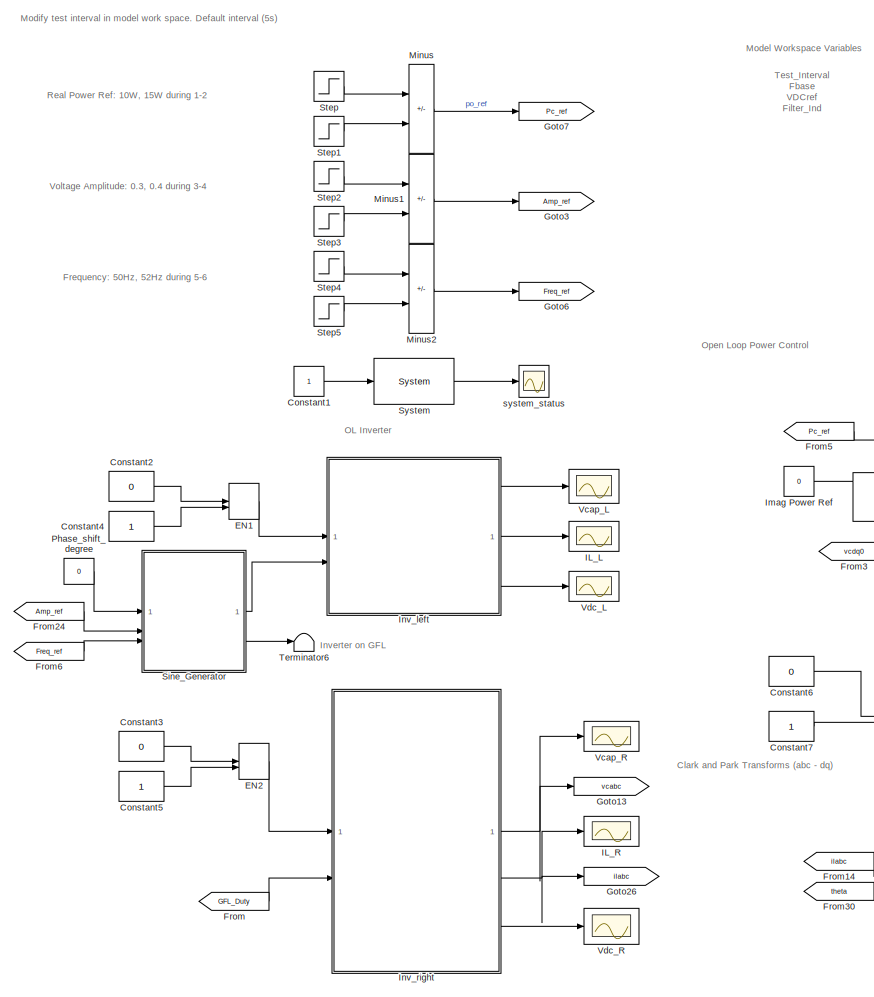
[diagram: root canvas - part 1/3, top left region]
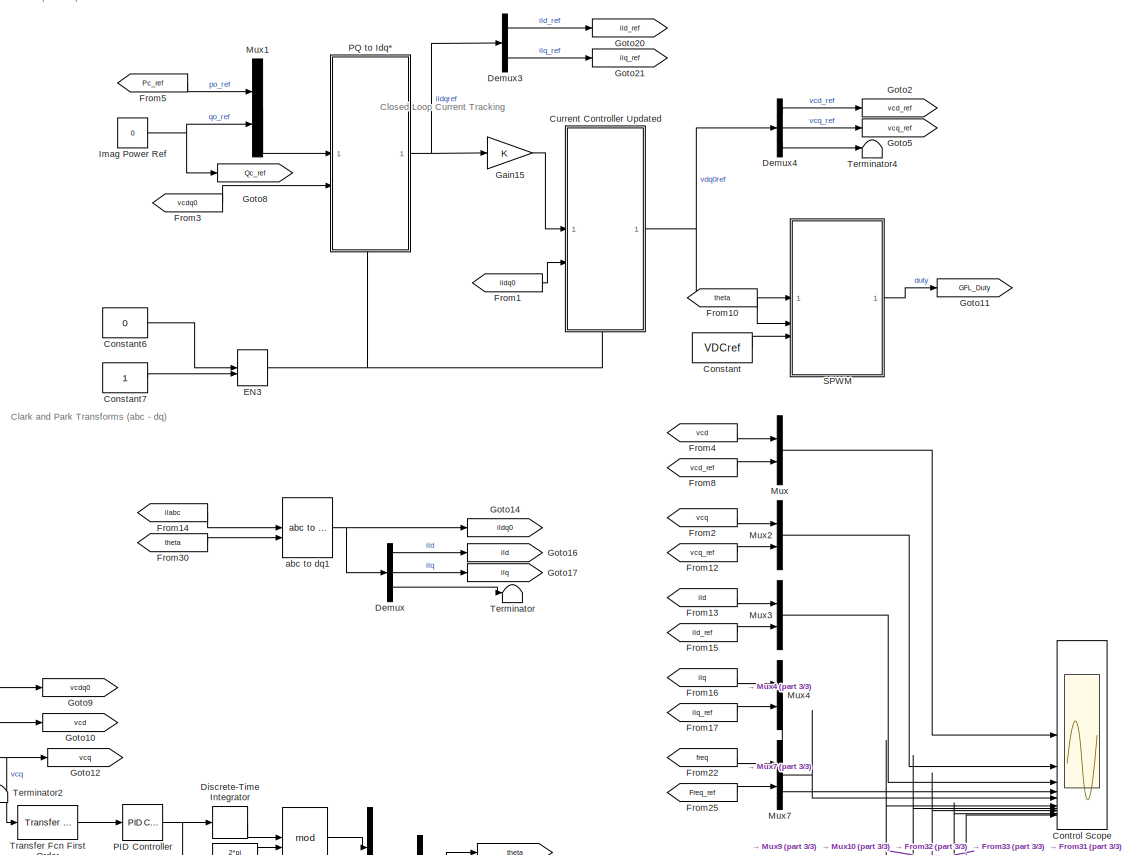
[diagram: root canvas - part 2/3, middle right region]
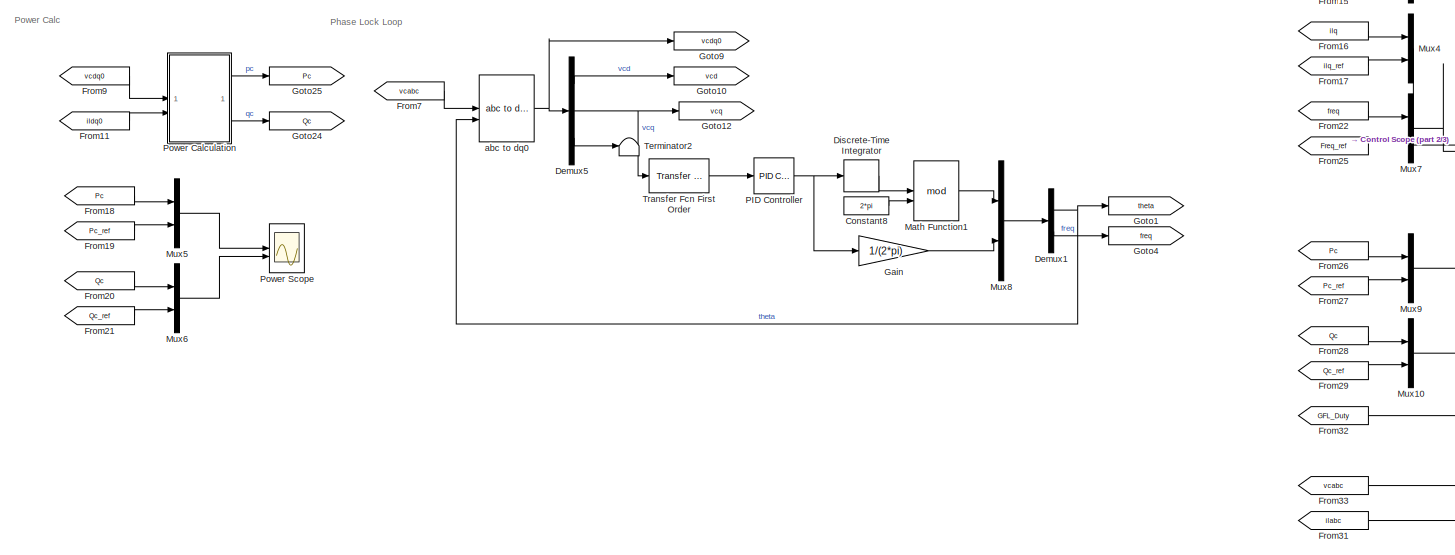
[diagram: root canvas - part 3/3, full width, bottom band]
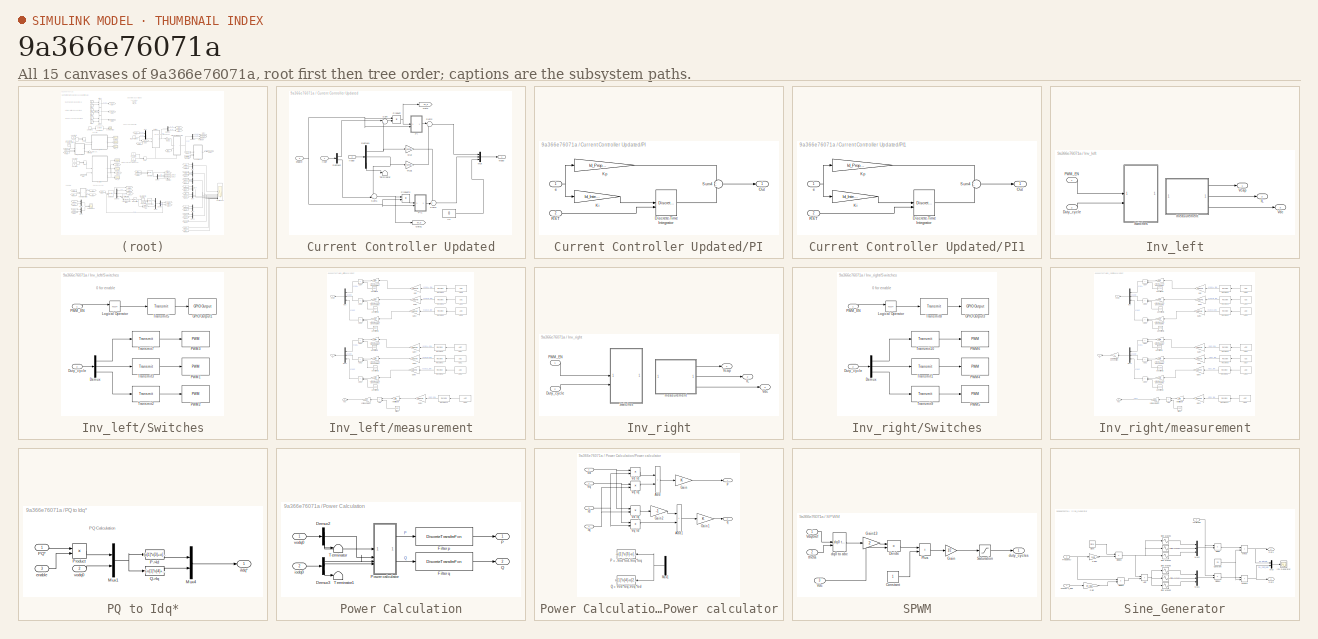
[diagram: thumbnail index - all 15 canvases of the model, root first then tree order]
MODEL slx_9a366e76071a
KIND model
CONFIG AbsTol = auto
CONFIG EnableMultiTasking = on
CONFIG FixedStep = Ts
CONFIG InitFcn = Ts = 100e-6;
CONFIG MaxStep = auto
CONFIG MinStep = auto
CONFIG RelTol = 1e-3
CONFIG SampleTimeConstraint = Unconstrained
CONFIG SolverName = ode3
CONFIG StartTime = 0.0
CONFIG StopTime = 35
WORKSPACE source: mxarray member
WORKSPACE Fbase = 50
WORKSPACE Filter_Ind = 0.00435
WORKSPACE Test_Interval = 5
WORKSPACE VDCref = 48
BLOCK [Constant] Constant
  Value = VDCref
BLOCK [Constant] Constant1
BLOCK [Constant] Constant2
  Value = 0
BLOCK [Constant] Constant3
  Value = 0
BLOCK [Constant] Constant4
BLOCK [Constant] Constant5
BLOCK [Constant] Constant6
  Value = 0
BLOCK [Constant] Constant7
BLOCK [Constant] Constant8
  NameLocation = top
  Value = 2*pi
BLOCK [Scope] Control Scope
  ExtModeLoggingTrig = on
  ExtModeUploadOption = log
  Floating = off
  NumInputPorts = 12
  ScopeSpecificationString = Simulink.scopes.TimeScopeBlockCfg('CurrentConfiguration', extmgr.ConfigurationSet(extmgr.Configuration('Core','General UI',true,'FigureColor',[1 1 1],'DisplayFullSourceName',true),extmgr.Configuration('Core','Source UI',true),extmgr.Configuration('Sources','WiredSimulink',true,'DataLoggingSaveFormat','StructureWithTime','DataLoggingVariableName','GFL_Test','DataLoggingMaxPoints','350000','DataLogg...<+10789ch>
BLOCK [SubSystem] Current Controller Updated
  PortSchema = {"entries":[{"content":{"sides":[{"content":{"connectorIds":["In1","In2"]},"type":"ConnectorPlacement.EquallySpacedRectSide","uuid":"134caf41-c34b-48d0-a71a-522329c40d8c"},{"content":{"connectorIds":["Out1"],"side":"RIGHT"},"type":"ConnectorPlacement.EquallySpacedRectSide","uuid":"de6d8359-09d9-4cb7-8990-bc4b6d48f18d"},{"content":{"connectorIds":[],"side":"TOP"},"type":"ConnectorPlacement.EquallyS...<+395ch>
BLOCK [Demux] Current Controller Updated/Demux1
  Outputs = 3
BLOCK [Demux] Current Controller Updated/Demux2
  Outputs = 2
BLOCK [Goto] Current Controller Updated/Goto
  GotoTag = ev_d
  TagVisibility = global
BLOCK [Goto] Current Controller Updated/Goto1
  GotoTag = ev_q
  TagVisibility = global
BLOCK [Mux] Current Controller Updated/Mux
  DisplayOption = bar
  Inputs = 3
BLOCK [SubSystem] Current Controller Updated/PI
BLOCK [DiscreteIntegrator] Current Controller Updated/PI/Discrete-Time Integrator
  ExternalReset = either
  ICPrevOutput = DiscIntNeverNeededParam
  ICPrevScaledInput = DiscIntNeverNeededParam
  LimitOutput = on
  LowerSaturationLimit = -20000
  SampleTime = Ts
  UpperSaturationLimit = 20000
  gainval = 1
BLOCK [Gain] Current Controller Updated/PI/Ki
  Gain = Id_Integral
  OutDataTypeStr = Inherit: Same as input
  ParamDataTypeStr = Inherit: Same as input
  SaturateOnIntegerOverflow = on
BLOCK [Gain] Current Controller Updated/PI/Kp
  Gain = Id_Proportional
  OutDataTypeStr = Inherit: Same as input
  ParamDataTypeStr = Inherit: Same as input
  SaturateOnIntegerOverflow = on
BLOCK [Outport] Current Controller Updated/PI/Out
BLOCK [Inport] Current Controller Updated/PI/RST
  Port = 2
BLOCK [Sum] Current Controller Updated/PI/Sum4
  SaturateOnIntegerOverflow = on
BLOCK [Inport] Current Controller Updated/PI/e
BLOCK [SubSystem] Current Controller Updated/PI1
BLOCK [DiscreteIntegrator] Current Controller Updated/PI1/Discrete-Time Integrator
  ExternalReset = either
  ICPrevOutput = DiscIntNeverNeededParam
  ICPrevScaledInput = DiscIntNeverNeededParam
  LimitOutput = on
  LowerSaturationLimit = -20000
  SampleTime = Ts
  UpperSaturationLimit = 20000
  gainval = 1
BLOCK [Gain] Current Controller Updated/PI1/Ki
  Gain = Id_Integral
  OutDataTypeStr = Inherit: Same as input
  ParamDataTypeStr = Inherit: Same as input
  SaturateOnIntegerOverflow = on
BLOCK [Gain] Current Controller Updated/PI1/Kp
  Gain = Id_Proportional
  OutDataTypeStr = Inherit: Same as input
  ParamDataTypeStr = Inherit: Same as input
  SaturateOnIntegerOverflow = on
BLOCK [Outport] Current Controller Updated/PI1/Out
BLOCK [Inport] Current Controller Updated/PI1/RST
  Port = 2
BLOCK [Sum] Current Controller Updated/PI1/Sum4
  SaturateOnIntegerOverflow = on
BLOCK [Inport] Current Controller Updated/PI1/e
BLOCK [Product] Current Controller Updated/Product
  RndMeth = Zero
BLOCK [Product] Current Controller Updated/Product2
  RndMeth = Zero
BLOCK [Sum] Current Controller Updated/Sum
  Inputs = |+-
BLOCK [Sum] Current Controller Updated/Sum1
  Inputs = -+|
BLOCK [Sum] Current Controller Updated/Sum2
  Inputs = |+-
BLOCK [Sum] Current Controller Updated/Sum3
  Inputs = ++|
BLOCK [Terminator] Current Controller Updated/Terminator
BLOCK [Constant] Current Controller Updated/Vz
  Value = 0
BLOCK [Inport] Current Controller Updated/enable
  Port = 3
BLOCK [Inport] Current Controller Updated/ildq*
BLOCK [Inport] Current Controller Updated/ildq0
  Port = 2
BLOCK [Outport] Current Controller Updated/vtdq0
BLOCK [Gain] Current Controller Updated/wLd
  Gain = 2*pi*Fbase*Filter_Ind
BLOCK [Gain] Current Controller Updated/wLd1
  Gain = 2*pi*Fbase*Filter_Ind
BLOCK [Demux] Demux
  Outputs = 3
BLOCK [Demux] Demux1
  Outputs = 2
BLOCK [Demux] Demux3
  Outputs = 2
BLOCK [Demux] Demux4
  Outputs = 3
BLOCK [Demux] Demux5
  Outputs = 3
BLOCK [DiscreteIntegrator] Discrete-Time Integrator
  ICPrevOutput = DiscIntNeverNeededParam
  ICPrevScaledInput = DiscIntNeverNeededParam
  SampleTime = Ts
BLOCK [ManualSwitch] EN1
  CurrentSetting = 0
BLOCK [ManualSwitch] EN2
  CurrentSetting = 0
BLOCK [ManualSwitch] EN3
  CurrentSetting = 0
BLOCK [From] From
  GotoTag = GFL_Duty
BLOCK [From] From1
  CloseFcn = tagdialog Close
  GotoTag = ildq0
  NameLocation = top
BLOCK [From] From10
  CloseFcn = tagdialog Close
  GotoTag = theta
  NameLocation = top
BLOCK [From] From11
  CloseFcn = tagdialog Close
  GotoTag = ildq0
  NameLocation = top
BLOCK [From] From12
  CloseFcn = tagdialog Close
  GotoTag = vcq_ref
  NameLocation = top
BLOCK [From] From13
  CloseFcn = tagdialog Close
  GotoTag = ild
  NameLocation = top
BLOCK [From] From14
  CloseFcn = tagdialog Close
  GotoTag = ilabc
  NameLocation = top
BLOCK [From] From15
  CloseFcn = tagdialog Close
  GotoTag = ild_ref
  NameLocation = top
BLOCK [From] From16
  CloseFcn = tagdialog Close
  GotoTag = ilq
  NameLocation = top
BLOCK [From] From17
  CloseFcn = tagdialog Close
  GotoTag = ilq_ref
  NameLocation = top
BLOCK [From] From18
  CloseFcn = tagdialog Close
  GotoTag = Pc
  NameLocation = top
BLOCK [From] From19
  CloseFcn = tagdialog Close
  GotoTag = Pc_ref
  NameLocation = top
BLOCK [From] From2
  CloseFcn = tagdialog Close
  GotoTag = vcq
  NameLocation = top
BLOCK [From] From20
  CloseFcn = tagdialog Close
  GotoTag = Qc
  NameLocation = top
BLOCK [From] From21
  CloseFcn = tagdialog Close
  GotoTag = Qc_ref
  NameLocation = top
BLOCK [From] From22
  GotoTag = freq
BLOCK [From] From24
  GotoTag = Amp_ref
BLOCK [From] From25
  GotoTag = Freq_ref
BLOCK [From] From26
  CloseFcn = tagdialog Close
  GotoTag = Pc
  NameLocation = top
BLOCK [From] From27
  CloseFcn = tagdialog Close
  GotoTag = Pc_ref
  NameLocation = top
BLOCK [From] From28
  CloseFcn = tagdialog Close
  GotoTag = Qc
  NameLocation = top
BLOCK [From] From29
  CloseFcn = tagdialog Close
  GotoTag = Qc_ref
  NameLocation = top
BLOCK [From] From3
  CloseFcn = tagdialog Close
  GotoTag = vcdq0
  NameLocation = top
BLOCK [From] From30
  CloseFcn = tagdialog Close
  GotoTag = theta
  NameLocation = top
BLOCK [From] From31
  CloseFcn = tagdialog Close
  GotoTag = ilabc
  NameLocation = top
BLOCK [From] From32
  CloseFcn = tagdialog Close
  GotoTag = GFL_Duty
  NameLocation = top
BLOCK [From] From33
  CloseFcn = tagdialog Close
  GotoTag = vcabc
  NameLocation = top
BLOCK [From] From4
  CloseFcn = tagdialog Close
  GotoTag = vcd
  NameLocation = top
BLOCK [From] From5
  CloseFcn = tagdialog Close
  GotoTag = Pc_ref
  NameLocation = top
BLOCK [From] From6
  GotoTag = Freq_ref
BLOCK [From] From7
  CloseFcn = tagdialog Close
  GotoTag = vcabc
  NameLocation = top
BLOCK [From] From8
  CloseFcn = tagdialog Close
  GotoTag = vcd_ref
  NameLocation = top
BLOCK [From] From9
  CloseFcn = tagdialog Close
  GotoTag = vcdq0
  NameLocation = top
BLOCK [Gain] Gain
  Gain = 1/(2*pi)
BLOCK [Gain] Gain15
BLOCK [Goto] Goto1
  GotoTag = theta
BLOCK [Goto] Goto10
  GotoTag = vcd
BLOCK [Goto] Goto11
  GotoTag = GFL_Duty
BLOCK [Goto] Goto12
  GotoTag = vcq
BLOCK [Goto] Goto13
  GotoTag = vcabc
BLOCK [Goto] Goto14
  GotoTag = ildq0
BLOCK [Goto] Goto16
  GotoTag = ild
BLOCK [Goto] Goto17
  GotoTag = ilq
BLOCK [Goto] Goto2
  GotoTag = vcd_ref
BLOCK [Goto] Goto20
  GotoTag = ild_ref
BLOCK [Goto] Goto21
  GotoTag = ilq_ref
BLOCK [Goto] Goto24
  GotoTag = Qc
BLOCK [Goto] Goto25
  GotoTag = Pc
BLOCK [Goto] Goto26
  GotoTag = ilabc
BLOCK [Goto] Goto3
  GotoTag = Amp_ref
BLOCK [Goto] Goto4
  GotoTag = freq
BLOCK [Goto] Goto5
  GotoTag = vcq_ref
BLOCK [Goto] Goto6
  GotoTag = Freq_ref
BLOCK [Goto] Goto7
  GotoTag = Pc_ref
BLOCK [Goto] Goto8
  GotoTag = Qc_ref
BLOCK [Goto] Goto9
  GotoTag = vcdq0
BLOCK [Scope] IL_L
  Floating = off
  NumInputPorts = 1
  ScopeSpecificationString = Simulink.scopes.TimeScopeBlockCfg('CurrentConfiguration', extmgr.ConfigurationSet(extmgr.Configuration('Core','General UI',true),extmgr.Configuration('Core','Source UI',true),extmgr.Configuration('Sources','WiredSimulink',true,'DataLogging',true,'DataLoggingSaveFormat','StructureWithTime','DataLoggingVariableName','ScopeData2'),extmgr.Configuration('Visuals','Time Domain',true,'SerializedDisplays'...<+2079ch>
BLOCK [Scope] IL_R
  Floating = off
  NumInputPorts = 1
  ScopeSpecificationString = Simulink.scopes.TimeScopeBlockCfg('CurrentConfiguration', extmgr.ConfigurationSet(extmgr.Configuration('Core','General UI',true),extmgr.Configuration('Core','Source UI',true),extmgr.Configuration('Sources','WiredSimulink',true,'DataLogging',true,'DataLoggingSaveFormat','StructureWithTime','DataLoggingVariableName','ScopeData1'),extmgr.Configuration('Visuals','Time Domain',true,'SerializedDisplays'...<+2084ch>
BLOCK [Constant] Imag Power Ref
  Value = 0
BLOCK [SubSystem] Inv_left
BLOCK [Inport] Inv_left/Duty_cycle
  Port = 2
BLOCK [Outport] Inv_left/IL
  Port = 2
BLOCK [Inport] Inv_left/PWM_EN
BLOCK [SubSystem] Inv_left/Switches
BLOCK [Demux] Inv_left/Switches/Demux
  Outputs = 3
BLOCK [Inport] Inv_left/Switches/Duty_cycle
  Port = 2
BLOCK [Reference] Inv_left/Switches/GPIO Output1  REF=rtpi/GPIO Output
  SourceBlock = rtpi/GPIO Output
  SourceProductName = Simplus Real-Time
  SourceType = GPIO Output
BLOCK [Logic] Inv_left/Switches/Logical Operator
  AllPortsSameDT = off
  Operator = NOT
  OutDataTypeStr = boolean
BLOCK [Reference] Inv_left/Switches/PWM1  REF=rtpi/PWM
  SourceBlock = rtpi/PWM
  SourceProductName = Simplus Real-Time
  SourceType = Pulse-Width Modulator
BLOCK [Reference] Inv_left/Switches/PWM2  REF=rtpi/PWM
  SourceBlock = rtpi/PWM
  SourceProductName = Simplus Real-Time
  SourceType = Pulse-Width Modulator
BLOCK [Reference] Inv_left/Switches/PWM3  REF=rtpi/PWM
  SourceBlock = rtpi/PWM
  SourceProductName = Simplus Real-Time
  SourceType = Pulse-Width Modulator
BLOCK [Inport] Inv_left/Switches/PWM_EN
BLOCK [Reference] Inv_left/Switches/Transmit2  REF=rtpi/Transmit
  Priority = 10
  SourceBlock = rtpi/Transmit
  SourceProductName = Simplus Real-Time
  SourceType = Interface: Transmit
BLOCK [Reference] Inv_left/Switches/Transmit3  REF=rtpi/Transmit
  Priority = 10
  SourceBlock = rtpi/Transmit
  SourceProductName = Simplus Real-Time
  SourceType = Interface: Transmit
BLOCK [Reference] Inv_left/Switches/Transmit5  REF=rtpi/Transmit
  SourceBlock = rtpi/Transmit
  SourceProductName = Simplus Real-Time
  SourceType = Interface: Transmit
BLOCK [Reference] Inv_left/Switches/Transmit7  REF=rtpi/Transmit
  Priority = 10
  SourceBlock = rtpi/Transmit
  SourceProductName = Simplus Real-Time
  SourceType = Interface: Transmit
BLOCK [Outport] Inv_left/Vcap
BLOCK [Outport] Inv_left/Vdc
  Port = 3
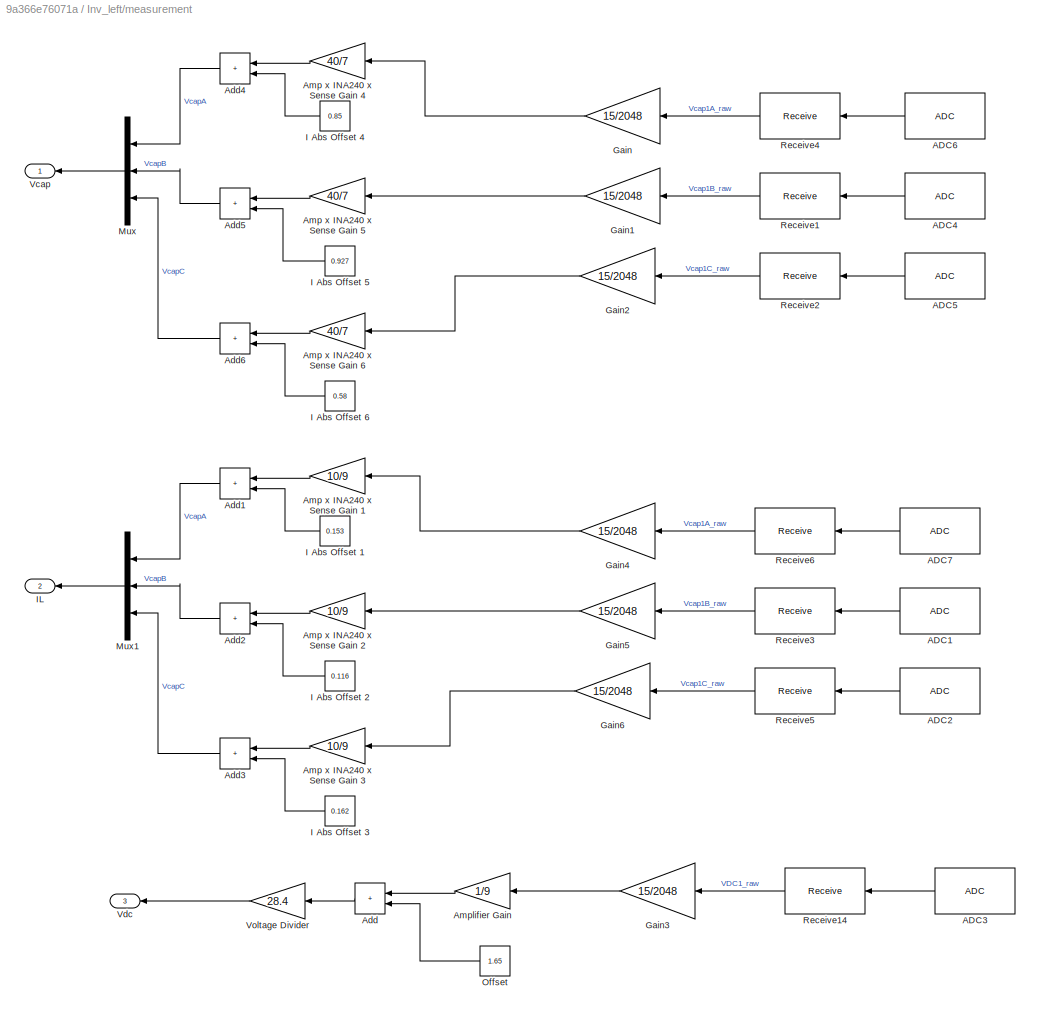
BLOCK [SubSystem] Inv_left/measurement
BLOCK [Reference] Inv_left/measurement/ADC1  REF=rtpi/ADC
  SourceBlock = rtpi/ADC
  SourceProductName = Simplus Real-Time
  SourceType = Analog-Digital Converter
BLOCK [Reference] Inv_left/measurement/ADC2  REF=rtpi/ADC
  SourceBlock = rtpi/ADC
  SourceProductName = Simplus Real-Time
  SourceType = Analog-Digital Converter
BLOCK [Reference] Inv_left/measurement/ADC3  REF=rtpi/ADC
  SourceBlock = rtpi/ADC
  SourceProductName = Simplus Real-Time
  SourceType = Analog-Digital Converter
BLOCK [Reference] Inv_left/measurement/ADC4  REF=rtpi/ADC
  SourceBlock = rtpi/ADC
  SourceProductName = Simplus Real-Time
  SourceType = Analog-Digital Converter
BLOCK [Reference] Inv_left/measurement/ADC5  REF=rtpi/ADC
  SourceBlock = rtpi/ADC
  SourceProductName = Simplus Real-Time
  SourceType = Analog-Digital Converter
BLOCK [Reference] Inv_left/measurement/ADC6  REF=rtpi/ADC
  SourceBlock = rtpi/ADC
  SourceProductName = Simplus Real-Time
  SourceType = Analog-Digital Converter
BLOCK [Reference] Inv_left/measurement/ADC7  REF=rtpi/ADC
  SourceBlock = rtpi/ADC
  SourceProductName = Simplus Real-Time
  SourceType = Analog-Digital Converter
BLOCK [Sum] Inv_left/measurement/Add
  IconShape = rectangular
  NameLocation = top
BLOCK [Sum] Inv_left/measurement/Add1
  IconShape = rectangular
  NameLocation = top
BLOCK [Sum] Inv_left/measurement/Add2
  IconShape = rectangular
  NameLocation = top
BLOCK [Sum] Inv_left/measurement/Add3
  IconShape = rectangular
  NameLocation = top
BLOCK [Sum] Inv_left/measurement/Add4
  IconShape = rectangular
  NameLocation = top
BLOCK [Sum] Inv_left/measurement/Add5
  IconShape = rectangular
  NameLocation = top
BLOCK [Sum] Inv_left/measurement/Add6
  IconShape = rectangular
  NameLocation = top
BLOCK [Gain] Inv_left/measurement/Amp x INA240 x Sense Gain 1
  Gain = 10/9
  NameLocation = top
BLOCK [Gain] Inv_left/measurement/Amp x INA240 x Sense Gain 2
  Gain = 10/9
  NameLocation = top
BLOCK [Gain] Inv_left/measurement/Amp x INA240 x Sense Gain 3
  Gain = 10/9
  NameLocation = top
BLOCK [Gain] Inv_left/measurement/Amp x INA240 x Sense Gain 4
  Gain = 40/7
  NameLocation = top
BLOCK [Gain] Inv_left/measurement/Amp x INA240 x Sense Gain 5
  Gain = 40/7
  NameLocation = top
BLOCK [Gain] Inv_left/measurement/Amp x INA240 x Sense Gain 6
  Gain = 40/7
  NameLocation = top
BLOCK [Gain] Inv_left/measurement/Amplifier Gain
  Gain = 1/9
  NameLocation = top
BLOCK [Gain] Inv_left/measurement/Gain
  Gain = 15/2048
  NameLocation = top
BLOCK [Gain] Inv_left/measurement/Gain1
  Gain = 15/2048
  NameLocation = top
BLOCK [Gain] Inv_left/measurement/Gain2
  Gain = 15/2048
  NameLocation = top
BLOCK [Gain] Inv_left/measurement/Gain3
  Gain = 15/2048
  NameLocation = top
BLOCK [Gain] Inv_left/measurement/Gain4
  Gain = 15/2048
  NameLocation = top
BLOCK [Gain] Inv_left/measurement/Gain5
  Gain = 15/2048
  NameLocation = top
BLOCK [Gain] Inv_left/measurement/Gain6
  Gain = 15/2048
  NameLocation = top
BLOCK [Constant] Inv_left/measurement/I Abs Offset 1
  NameLocation = top
  Value = 0.153
BLOCK [Constant] Inv_left/measurement/I Abs Offset 2
  NameLocation = top
  Value = 0.116
BLOCK [Constant] Inv_left/measurement/I Abs Offset 3
  NameLocation = top
  Value = 0.162
BLOCK [Constant] Inv_left/measurement/I Abs Offset 4
  NameLocation = top
  Value = 0.85
BLOCK [Constant] Inv_left/measurement/I Abs Offset 5
  NameLocation = top
  Value = 0.927
BLOCK [Constant] Inv_left/measurement/I Abs Offset 6
  NameLocation = top
  Value = 0.58
BLOCK [Outport] Inv_left/measurement/IL
  Port = 2
BLOCK [Mux] Inv_left/measurement/Mux
  DisplayOption = bar
  Inputs = 3
  NameLocation = top
BLOCK [Mux] Inv_left/measurement/Mux1
  DisplayOption = bar
  Inputs = 3
  NameLocation = top
BLOCK [Constant] Inv_left/measurement/Offset
  NameLocation = top
  Value = 1.65
BLOCK [Reference] Inv_left/measurement/Receive1  REF=rtpi/Receive
  Priority = 12
  SourceBlock = rtpi/Receive
  SourceProductName = Simplus Real-Time
  SourceType = Interface: Receive
BLOCK [Reference] Inv_left/measurement/Receive14  REF=rtpi/Receive
  Priority = 12
  SourceBlock = rtpi/Receive
  SourceProductName = Simplus Real-Time
  SourceType = Interface: Receive
BLOCK [Reference] Inv_left/measurement/Receive2  REF=rtpi/Receive
  Priority = 12
  SourceBlock = rtpi/Receive
  SourceProductName = Simplus Real-Time
  SourceType = Interface: Receive
BLOCK [Reference] Inv_left/measurement/Receive3  REF=rtpi/Receive
  Priority = 12
  SourceBlock = rtpi/Receive
  SourceProductName = Simplus Real-Time
  SourceType = Interface: Receive
BLOCK [Reference] Inv_left/measurement/Receive4  REF=rtpi/Receive
  Priority = 12
  SourceBlock = rtpi/Receive
  SourceProductName = Simplus Real-Time
  SourceType = Interface: Receive
BLOCK [Reference] Inv_left/measurement/Receive5  REF=rtpi/Receive
  Priority = 12
  SourceBlock = rtpi/Receive
  SourceProductName = Simplus Real-Time
  SourceType = Interface: Receive
BLOCK [Reference] Inv_left/measurement/Receive6  REF=rtpi/Receive
  Priority = 12
  SourceBlock = rtpi/Receive
  SourceProductName = Simplus Real-Time
  SourceType = Interface: Receive
BLOCK [Outport] Inv_left/measurement/Vcap
BLOCK [Outport] Inv_left/measurement/Vdc
  Port = 3
BLOCK [Gain] Inv_left/measurement/Voltage Divider
  Gain = 28.4
  NameLocation = top
BLOCK [SubSystem] Inv_right
BLOCK [Inport] Inv_right/Duty_cycle
  Port = 2
BLOCK [Outport] Inv_right/IL
  Port = 2
BLOCK [Inport] Inv_right/PWM_EN
BLOCK [SubSystem] Inv_right/Switches
BLOCK [Demux] Inv_right/Switches/Demux
  Outputs = 3
BLOCK [Inport] Inv_right/Switches/Duty_cycle
  Port = 2
BLOCK [Reference] Inv_right/Switches/GPIO Output3  REF=rtpi/GPIO Output
  SourceBlock = rtpi/GPIO Output
  SourceProductName = Simplus Real-Time
  SourceType = GPIO Output
BLOCK [Logic] Inv_right/Switches/Logical Operator
  AllPortsSameDT = off
  Operator = NOT
  OutDataTypeStr = boolean
BLOCK [Reference] Inv_right/Switches/PWM4  REF=rtpi/PWM
  SourceBlock = rtpi/PWM
  SourceProductName = Simplus Real-Time
  SourceType = Pulse-Width Modulator
BLOCK [Reference] Inv_right/Switches/PWM5  REF=rtpi/PWM
  SourceBlock = rtpi/PWM
  SourceProductName = Simplus Real-Time
  SourceType = Pulse-Width Modulator
BLOCK [Reference] Inv_right/Switches/PWM6  REF=rtpi/PWM
  SourceBlock = rtpi/PWM
  SourceProductName = Simplus Real-Time
  SourceType = Pulse-Width Modulator
BLOCK [Inport] Inv_right/Switches/PWM_EN
BLOCK [Reference] Inv_right/Switches/Transmit1  REF=rtpi/Transmit
  Priority = 10
  SourceBlock = rtpi/Transmit
  SourceProductName = Simplus Real-Time
  SourceType = Interface: Transmit
BLOCK [Reference] Inv_right/Switches/Transmit10  REF=rtpi/Transmit
  Priority = 10
  SourceBlock = rtpi/Transmit
  SourceProductName = Simplus Real-Time
  SourceType = Interface: Transmit
BLOCK [Reference] Inv_right/Switches/Transmit8  REF=rtpi/Transmit
  SourceBlock = rtpi/Transmit
  SourceProductName = Simplus Real-Time
  SourceType = Interface: Transmit
BLOCK [Reference] Inv_right/Switches/Transmit9  REF=rtpi/Transmit
  Priority = 10
  SourceBlock = rtpi/Transmit
  SourceProductName = Simplus Real-Time
  SourceType = Interface: Transmit
BLOCK [Outport] Inv_right/Vcap
BLOCK [Outport] Inv_right/Vdc
  Port = 3
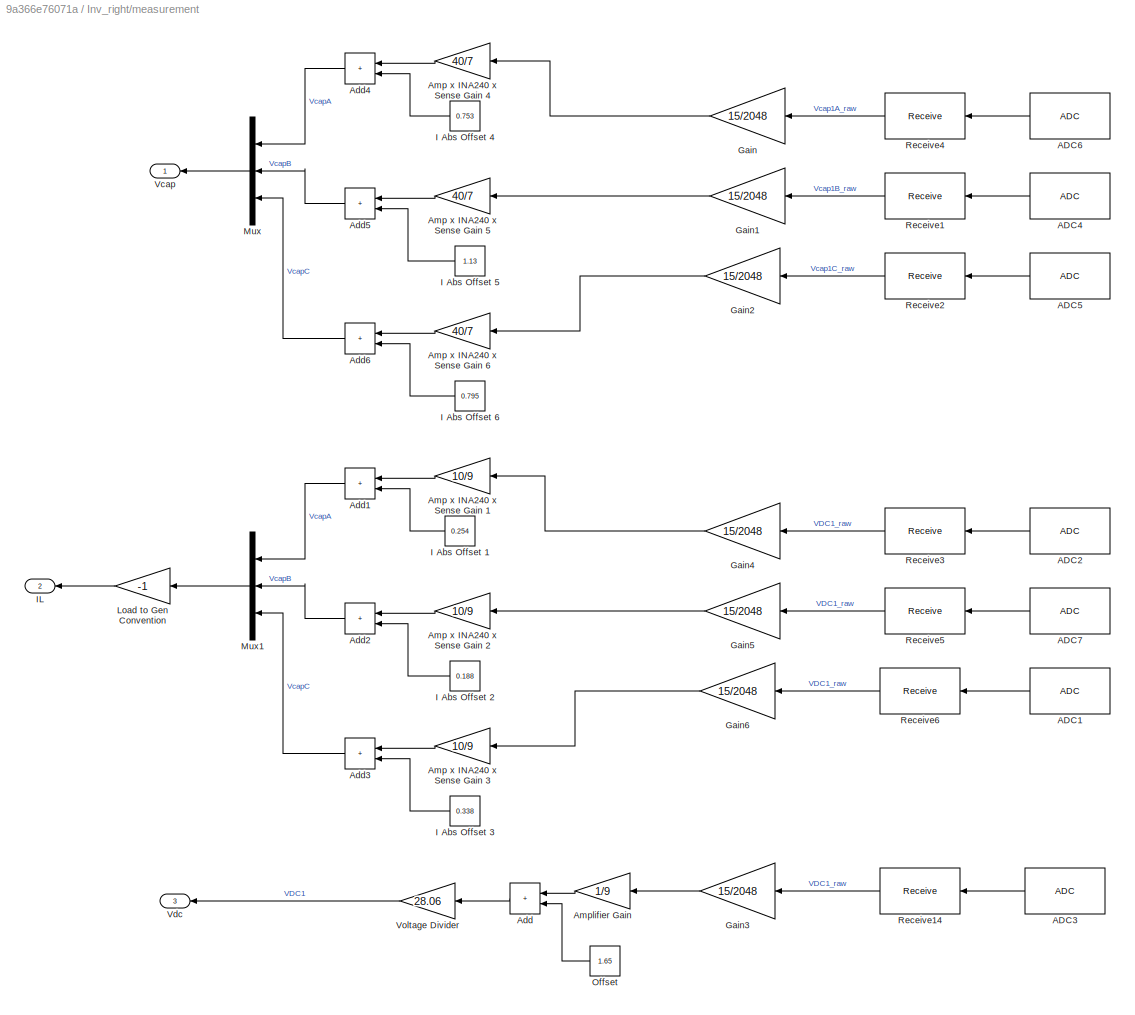
BLOCK [SubSystem] Inv_right/measurement
BLOCK [Reference] Inv_right/measurement/ADC1  REF=rtpi/ADC
  SourceBlock = rtpi/ADC
  SourceProductName = Simplus Real-Time
  SourceType = Analog-Digital Converter
BLOCK [Reference] Inv_right/measurement/ADC2  REF=rtpi/ADC
  SourceBlock = rtpi/ADC
  SourceProductName = Simplus Real-Time
  SourceType = Analog-Digital Converter
BLOCK [Reference] Inv_right/measurement/ADC3  REF=rtpi/ADC
  SourceBlock = rtpi/ADC
  SourceProductName = Simplus Real-Time
  SourceType = Analog-Digital Converter
BLOCK [Reference] Inv_right/measurement/ADC4  REF=rtpi/ADC
  SourceBlock = rtpi/ADC
  SourceProductName = Simplus Real-Time
  SourceType = Analog-Digital Converter
BLOCK [Reference] Inv_right/measurement/ADC5  REF=rtpi/ADC
  SourceBlock = rtpi/ADC
  SourceProductName = Simplus Real-Time
  SourceType = Analog-Digital Converter
BLOCK [Reference] Inv_right/measurement/ADC6  REF=rtpi/ADC
  SourceBlock = rtpi/ADC
  SourceProductName = Simplus Real-Time
  SourceType = Analog-Digital Converter
BLOCK [Reference] Inv_right/measurement/ADC7  REF=rtpi/ADC
  SourceBlock = rtpi/ADC
  SourceProductName = Simplus Real-Time
  SourceType = Analog-Digital Converter
BLOCK [Sum] Inv_right/measurement/Add
  IconShape = rectangular
  NameLocation = top
BLOCK [Sum] Inv_right/measurement/Add1
  IconShape = rectangular
  NameLocation = top
BLOCK [Sum] Inv_right/measurement/Add2
  IconShape = rectangular
  NameLocation = top
BLOCK [Sum] Inv_right/measurement/Add3
  IconShape = rectangular
  NameLocation = top
BLOCK [Sum] Inv_right/measurement/Add4
  IconShape = rectangular
  NameLocation = top
BLOCK [Sum] Inv_right/measurement/Add5
  IconShape = rectangular
  NameLocation = top
BLOCK [Sum] Inv_right/measurement/Add6
  IconShape = rectangular
  NameLocation = top
BLOCK [Gain] Inv_right/measurement/Amp x INA240 x Sense Gain 1
  Gain = 10/9
  NameLocation = top
BLOCK [Gain] Inv_right/measurement/Amp x INA240 x Sense Gain 2
  Gain = 10/9
  NameLocation = top
BLOCK [Gain] Inv_right/measurement/Amp x INA240 x Sense Gain 3
  Gain = 10/9
  NameLocation = top
BLOCK [Gain] Inv_right/measurement/Amp x INA240 x Sense Gain 4
  Gain = 40/7
  NameLocation = top
BLOCK [Gain] Inv_right/measurement/Amp x INA240 x Sense Gain 5
  Gain = 40/7
  NameLocation = top
BLOCK [Gain] Inv_right/measurement/Amp x INA240 x Sense Gain 6
  Gain = 40/7
  NameLocation = top
BLOCK [Gain] Inv_right/measurement/Amplifier Gain
  Gain = 1/9
  NameLocation = top
BLOCK [Gain] Inv_right/measurement/Gain
  Gain = 15/2048
  NameLocation = top
BLOCK [Gain] Inv_right/measurement/Gain1
  Gain = 15/2048
  NameLocation = top
BLOCK [Gain] Inv_right/measurement/Gain2
  Gain = 15/2048
  NameLocation = top
BLOCK [Gain] Inv_right/measurement/Gain3
  Gain = 15/2048
  NameLocation = top
BLOCK [Gain] Inv_right/measurement/Gain4
  Gain = 15/2048
  NameLocation = top
BLOCK [Gain] Inv_right/measurement/Gain5
  Gain = 15/2048
  NameLocation = top
BLOCK [Gain] Inv_right/measurement/Gain6
  Gain = 15/2048
  NameLocation = top
BLOCK [Constant] Inv_right/measurement/I Abs Offset 1
  NameLocation = top
  Value = 0.254
BLOCK [Constant] Inv_right/measurement/I Abs Offset 2
  NameLocation = top
  Value = 0.188
BLOCK [Constant] Inv_right/measurement/I Abs Offset 3
  NameLocation = top
  Value = 0.338
BLOCK [Constant] Inv_right/measurement/I Abs Offset 4
  NameLocation = top
  Value = 0.753
BLOCK [Constant] Inv_right/measurement/I Abs Offset 5
  NameLocation = top
  Value = 1.13
BLOCK [Constant] Inv_right/measurement/I Abs Offset 6
  NameLocation = top
  Value = 0.795
BLOCK [Outport] Inv_right/measurement/IL
  Port = 2
BLOCK [Gain] Inv_right/measurement/Load to Gen Convention
  Gain = -1
  NameLocation = top
BLOCK [Mux] Inv_right/measurement/Mux
  DisplayOption = bar
  Inputs = 3
  NameLocation = top
BLOCK [Mux] Inv_right/measurement/Mux1
  DisplayOption = bar
  Inputs = 3
  NameLocation = top
BLOCK [Constant] Inv_right/measurement/Offset
  NameLocation = top
  Value = 1.65
BLOCK [Reference] Inv_right/measurement/Receive1  REF=rtpi/Receive
  Priority = 12
  SourceBlock = rtpi/Receive
  SourceProductName = Simplus Real-Time
  SourceType = Interface: Receive
BLOCK [Reference] Inv_right/measurement/Receive14  REF=rtpi/Receive
  Priority = 12
  SourceBlock = rtpi/Receive
  SourceProductName = Simplus Real-Time
  SourceType = Interface: Receive
BLOCK [Reference] Inv_right/measurement/Receive2  REF=rtpi/Receive
  Priority = 12
  SourceBlock = rtpi/Receive
  SourceProductName = Simplus Real-Time
  SourceType = Interface: Receive
BLOCK [Reference] Inv_right/measurement/Receive3  REF=rtpi/Receive
  Priority = 12
  SourceBlock = rtpi/Receive
  SourceProductName = Simplus Real-Time
  SourceType = Interface: Receive
BLOCK [Reference] Inv_right/measurement/Receive4  REF=rtpi/Receive
  Priority = 12
  SourceBlock = rtpi/Receive
  SourceProductName = Simplus Real-Time
  SourceType = Interface: Receive
BLOCK [Reference] Inv_right/measurement/Receive5  REF=rtpi/Receive
  Priority = 12
  SourceBlock = rtpi/Receive
  SourceProductName = Simplus Real-Time
  SourceType = Interface: Receive
BLOCK [Reference] Inv_right/measurement/Receive6  REF=rtpi/Receive
  Priority = 12
  SourceBlock = rtpi/Receive
  SourceProductName = Simplus Real-Time
  SourceType = Interface: Receive
BLOCK [Outport] Inv_right/measurement/Vcap
BLOCK [Outport] Inv_right/measurement/Vdc
  Port = 3
BLOCK [Gain] Inv_right/measurement/Voltage Divider
  Gain = 28.06
  NameLocation = top
BLOCK [Math] Math Function1
  Operator = mod
  SignedPower = on
BLOCK [Sum] Minus
  IconShape = rectangular
  Inputs = +-
BLOCK [Sum] Minus1
  IconShape = rectangular
  Inputs = +-
BLOCK [Sum] Minus2
  IconShape = rectangular
  Inputs = +-
BLOCK [Mux] Mux
  DisplayOption = bar
  Inputs = 2
BLOCK [Mux] Mux1
  DisplayOption = bar
  Inputs = 2
BLOCK [Mux] Mux10
  DisplayOption = bar
  Inputs = 2
BLOCK [Mux] Mux2
  DisplayOption = bar
  Inputs = 2
BLOCK [Mux] Mux3
  DisplayOption = bar
  Inputs = 2
BLOCK [Mux] Mux4
  DisplayOption = bar
  Inputs = 2
BLOCK [Mux] Mux5
  DisplayOption = bar
  Inputs = 2
BLOCK [Mux] Mux6
  DisplayOption = bar
  Inputs = 2
BLOCK [Mux] Mux7
  DisplayOption = bar
  Inputs = 2
BLOCK [Mux] Mux8
  DisplayOption = bar
  Inputs = 2
BLOCK [Mux] Mux9
  DisplayOption = bar
  Inputs = 2
BLOCK [Reference] PID Controller  REF=slpidlib/PID Controller
  LibrarySourceBlock = simulink/Continuous/PID Controller
  SourceBlock = slpidlib/PID Controller
  SourceType = PID 1dof
BLOCK [SubSystem] PQ to Idq*
  PortSchema = {"entries":[{"content":{"sides":[{"content":{"connectorIds":["In1","In2"]},"type":"ConnectorPlacement.EquallySpacedRectSide","uuid":"5271b3ed-46a4-4113-9b69-458d23b85fa2"},{"content":{"connectorIds":["Out1"],"side":"RIGHT"},"type":"ConnectorPlacement.EquallySpacedRectSide","uuid":"00fb532b-4b50-4607-a5c4-cd74a5a5fc42"},{"content":{"connectorIds":[],"side":"TOP"},"type":"ConnectorPlacement.EquallyS...<+395ch>
BLOCK [Mux] PQ to Idq*/Mux1
  DisplayOption = bar
  Inputs = 2
BLOCK [Mux] PQ to Idq*/Mux4
  DisplayOption = bar
  Inputs = 2
BLOCK [Fcn] PQ to Idq*/P->Id
  Expr = (u[1]*u[3]+u[2]*u[4])/(u[3]*u[3]+u[4]*u[4])
BLOCK [Inport] PQ to Idq*/PQ*
BLOCK [Product] PQ to Idq*/Product
  RndMeth = Zero
BLOCK [Fcn] PQ to Idq*/Q->Iq
  Expr = -(-u[1]*u[4]+u[2]*u[3])/(u[3]*u[3]+u[4]*u[4])
BLOCK [Inport] PQ to Idq*/enable
  Port = 3
BLOCK [Outport] PQ to Idq*/iIdq*
BLOCK [Inport] PQ to Idq*/vodq0
  Port = 2
BLOCK [Constant] Phase_shift_degree
  Value = 0
BLOCK [SubSystem] Power Calculation
BLOCK [Demux] Power Calculation/Demux2
  Outputs = 3
BLOCK [Demux] Power Calculation/Demux3
  Outputs = 3
BLOCK [DiscreteTransferFcn] Power Calculation/Filter p
  Denominator = [1 ((250*2*pi*Ts)-1)]
  InputPortMap = u0
  Numerator = 250*2*pi*Ts
  SampleTime = Ts
BLOCK [DiscreteTransferFcn] Power Calculation/Filter q
  Denominator = [1 ((250*2*pi*Ts)-1)]
  InputPortMap = u0
  Numerator = 250*2*pi*Ts
  SampleTime = Ts
BLOCK [Outport] Power Calculation/P
BLOCK [SubSystem] Power Calculation/Power calculator
BLOCK [Sum] Power Calculation/Power calculator/Add
  IconShape = rectangular
BLOCK [Sum] Power Calculation/Power calculator/Add1
  IconShape = rectangular
BLOCK [Gain] Power Calculation/Power calculator/Gain
BLOCK [Gain] Power Calculation/Power calculator/Gain1
BLOCK [Gain] Power Calculation/Power calculator/Gain2
  Gain = -1
BLOCK [Inport] Power Calculation/Power calculator/Id
  NameLocation = top
  Port = 3
BLOCK [Inport] Power Calculation/Power calculator/Iq
  NameLocation = top
  Port = 4
BLOCK [Mux] Power Calculation/Power calculator/Mux1
  Commented = on
  DisplayOption = bar
  NameLocation = top
BLOCK [Fcn] Power Calculation/Power calculator/P = -Vod*Iod-Voq*Ioq
  Commented = on
  Expr = -u[1]*u[3]-u[2]*u[4]
  NameLocation = top
BLOCK [Fcn] Power Calculation/Power calculator/Q = Vod*Ioq-Voq*Iod
  Commented = on
  Expr = u[1]*u[4]-u[2]*u[3]
  NameLocation = top
BLOCK [Inport] Power Calculation/Power calculator/Vd
  NameLocation = top
BLOCK [Product] Power Calculation/Power calculator/Vd Id
BLOCK [Product] Power Calculation/Power calculator/Vd Iq
BLOCK [Inport] Power Calculation/Power calculator/Vq
  NameLocation = top
  Port = 2
BLOCK [Product] Power Calculation/Power calculator/Vq Id
BLOCK [Product] Power Calculation/Power calculator/Vq Iq
BLOCK [Outport] Power Calculation/Power calculator/p
  NameLocation = top
BLOCK [Outport] Power Calculation/Power calculator/q
  NameLocation = top
  Port = 2
BLOCK [Outport] Power Calculation/Q
  Port = 2
BLOCK [Terminator] Power Calculation/Terminator
BLOCK [Terminator] Power Calculation/Terminator1
BLOCK [Inport] Power Calculation/iodq0
  Port = 2
BLOCK [Inport] Power Calculation/vodq0
BLOCK [Scope] Power Scope
  Floating = off
  NumInputPorts = 2
  ScopeSpecificationString = Simulink.scopes.TimeScopeBlockCfg('CurrentConfiguration', extmgr.ConfigurationSet(extmgr.Configuration('Core','General UI',true),extmgr.Configuration('Core','Source UI',true),extmgr.Configuration('Sources','WiredSimulink',true,'DataLoggingVariableName','ScopeData1'),extmgr.Configuration('Visuals','Time Domain',true,'SerializedDisplays',{struct('MinYLimReal','-10.00000','MaxYLimReal','10.00000','YL...<+1973ch>
BLOCK [SubSystem] SPWM
BLOCK [Constant] SPWM/Constant
BLOCK [Product] SPWM/Divide
  Inputs = */
BLOCK [Gain] SPWM/Gain
  Gain = 1/2
BLOCK [Gain] SPWM/Gain13
  Gain = 2
BLOCK [Sum] SPWM/Plus
  IconShape = rectangular
BLOCK [Saturate] SPWM/Saturation
  LowerLimit = 0.1
  UpperLimit = 0.9
BLOCK [Inport] SPWM/Vdc
  Port = 3
BLOCK [Inport] SPWM/Vdq0ref
BLOCK [Reference] SPWM/dq0 to abc  REF=spsdq0toabcLib/dq0 to abc
  LibrarySourceBlock = sps_lib/Control/dq0 to abc
  SourceBlock = spsdq0toabcLib/dq0 to abc
  SourceType = dq0 to abc Transformation
BLOCK [Outport] SPWM/duty_cycles
BLOCK [Inport] SPWM/theta
  Port = 2
BLOCK [SubSystem] Sine_Generator
BLOCK [Sum] Sine_Generator/Add
  IconShape = rectangular
BLOCK [Inport] Sine_Generator/Amplitude
  Port = 2
BLOCK [Clock] Sine_Generator/Clock
BLOCK [Constant] Sine_Generator/Constant
  Value = 0.5
BLOCK [Product] Sine_Generator/Divide
  Inputs = **
BLOCK [Product] Sine_Generator/Divide1
  Inputs = **
BLOCK [Product] Sine_Generator/Divide2
  Inputs = **
BLOCK [Product] Sine_Generator/Divide3
  Inputs = **
BLOCK [Inport] Sine_Generator/Frequency
  Port = 3
BLOCK [Gain] Sine_Generator/Gain
  Gain = pi/360
BLOCK [Gain] Sine_Generator/Gain1
  Gain = 2*pi
BLOCK [Scope] Sine_Generator/Inv Generator
  Floating = off
  NumInputPorts = 1
  ScopeSpecificationString = Simulink.scopes.TimeScopeBlockCfg('CurrentConfiguration', extmgr.ConfigurationSet(extmgr.Configuration('Core','General UI',true),extmgr.Configuration('Core','Source UI',true),extmgr.Configuration('Sources','WiredSimulink',true,'DataLoggingVariableName','ScopeData2'),extmgr.Configuration('Visuals','Time Domain',true,'SerializedDisplays',{struct('MinYLimReal','0.125','MaxYLimReal','0.875','YLabelRea...<+2026ch>
BLOCK [Sum] Sine_Generator/Minus
  IconShape = rectangular
BLOCK [Sum] Sine_Generator/Minus1
  IconShape = rectangular
BLOCK [Mux] Sine_Generator/Mux
  DisplayOption = bar
  Inputs = 2
BLOCK [Mux] Sine_Generator/Mux1
  DisplayOption = bar
  Inputs = 3
BLOCK [Mux] Sine_Generator/Mux2
  DisplayOption = bar
  Inputs = 3
BLOCK [Outport] Sine_Generator/Out1
BLOCK [Outport] Sine_Generator/Out2
  Port = 2
BLOCK [Inport] Sine_Generator/Phase2-1_Deg
BLOCK [Sin] Sine_Generator/Sine Wave1
  Phase = -2*pi/3
  TimeSource = Use external signal
BLOCK [Sin] Sine_Generator/Sine Wave2
  Phase = 2*pi/3
  TimeSource = Use external signal
BLOCK [Sin] Sine_Generator/Sine Wave3
  TimeSource = Use external signal
BLOCK [Sin] Sine_Generator/Sine Wave4
  Phase = -2*pi/3
  TimeSource = Use external signal
BLOCK [Sin] Sine_Generator/Sine Wave5
  Phase = 2*pi/3
  TimeSource = Use external signal
BLOCK [Sin] Sine_Generator/Sine Wave6
  TimeSource = Use external signal
BLOCK [Step] Step
  After = 15
  Before = 10
  Time = Test_Interval*1
BLOCK [Step] Step1
  After = 5
  Time = Test_Interval*2
BLOCK [Step] Step2
  After = 0.4
  Before = 0.3
  Time = Test_Interval*3
BLOCK [Step] Step3
  After = 0.1
  Time = Test_Interval*4
BLOCK [Step] Step4
  After = 52
  Before = 50
  SampleTime = 0
  Time = Test_Interval*5
BLOCK [Step] Step5
  After = 2
  Time = Test_Interval*6
BLOCK [Reference] System  REF=rtpi/System
  Priority = -100
  SourceBlock = rtpi/System
  SourceProductName = Simplus Real-Time
  SourceType = System Configuration
BLOCK [Terminator] Terminator
BLOCK [Terminator] Terminator2
BLOCK [Terminator] Terminator4
BLOCK [Terminator] Terminator6
BLOCK [Reference] Transfer Fcn First Order  REF=simulink/Discrete/Transfer Fcn
First Order
  SourceBlock = simulink/Discrete/Transfer Fcn\nFirst Order
  SourceType = First Order Transfer Fcn
BLOCK [Scope] Vcap_L
  Floating = off
  NumInputPorts = 1
  ScopeSpecificationString = Simulink.scopes.TimeScopeBlockCfg('CurrentConfiguration', extmgr.ConfigurationSet(extmgr.Configuration('Core','General UI',true),extmgr.Configuration('Core','Source UI',true),extmgr.Configuration('Sources','WiredSimulink',true,'DataLogging',true,'DataLoggingSaveFormat','StructureWithTime','DataLoggingVariableName','ScopeData3'),extmgr.Configuration('Visuals','Time Domain',true,'SerializedDisplays'...<+2088ch>
BLOCK [Scope] Vcap_R
  Floating = off
  NumInputPorts = 1
  ScopeSpecificationString = Simulink.scopes.TimeScopeBlockCfg('CurrentConfiguration', extmgr.ConfigurationSet(extmgr.Configuration('Core','General UI',true),extmgr.Configuration('Core','Source UI',true),extmgr.Configuration('Sources','WiredSimulink',true,'DataLogging',true,'DataLoggingSaveFormat','StructureWithTime','DataLoggingVariableName','ScopeData2'),extmgr.Configuration('Visuals','Time Domain',true,'SerializedDisplays'...<+2091ch>
BLOCK [Scope] Vdc_L
  Floating = off
  NumInputPorts = 1
  ScopeSpecificationString = Simulink.scopes.TimeScopeBlockCfg('CurrentConfiguration', extmgr.ConfigurationSet(extmgr.Configuration('Core','General UI',true),extmgr.Configuration('Core','Source UI',true),extmgr.Configuration('Sources','WiredSimulink',true,'DataLogging',true,'DataLoggingSaveFormat','StructureWithTime','DataLoggingVariableName','ScopeData4'),extmgr.Configuration('Visuals','Time Domain',true,'SerializedDisplays'...<+1989ch>
BLOCK [Scope] Vdc_R
  Floating = off
  NumInputPorts = 1
  ScopeSpecificationString = Simulink.scopes.TimeScopeBlockCfg('CurrentConfiguration', extmgr.ConfigurationSet(extmgr.Configuration('Core','General UI',true),extmgr.Configuration('Core','Source UI',true),extmgr.Configuration('Sources','WiredSimulink',true,'DataLogging',true,'DataLoggingSaveFormat','StructureWithTime','DataLoggingVariableName','ScopeData3'),extmgr.Configuration('Visuals','Time Domain',true,'SerializedDisplays'...<+1995ch>
BLOCK [Reference] abc to dq0  REF=spsabctodq0Lib/abc to dq0
  LibrarySourceBlock = sps_lib/Control/abc to dq0
  SourceBlock = spsabctodq0Lib/abc to dq0
  SourceType = abc to dq0 Transformation
BLOCK [Reference] abc to dq1  REF=spsabctodq0Lib/abc to dq0
  LibrarySourceBlock = sps_lib/Control/abc to dq0
  SourceBlock = spsabctodq0Lib/abc to dq0
  SourceType = abc to dq0 Transformation
BLOCK [Scope] system_status
  Floating = off
  NumInputPorts = 1
  ScopeSpecificationString = Simulink.scopes.TimeScopeBlockCfg('CurrentConfiguration', extmgr.ConfigurationSet(extmgr.Configuration('Core','General UI',true),extmgr.Configuration('Core','Source UI',true),extmgr.Configuration('Sources','WiredSimulink',true,'DataLogging',true,'DataLoggingSaveFormat','StructureWithTime','DataLoggingVariableName','ScopeData11'),extmgr.Configuration('Visuals','Time Domain',true,'SerializedDisplays...<+1485ch>
ANNOTATION (root): Clark and Park Transforms (abc - dq)
ANNOTATION (root): Closed Loop Current Tracking
ANNOTATION (root): Frequency: 50Hz, 52Hz during 5-6
ANNOTATION (root): Inverter on GFL
ANNOTATION (root): Model Workspace Variables
ANNOTATION (root): Modify test interval in model work space. Default interval (5s)
ANNOTATION (root): OL Inverter
ANNOTATION (root): Open Loop Power Control
ANNOTATION (root): Phase Lock Loop
ANNOTATION (root): Power Calc
ANNOTATION (root): Real Power Ref: 10W, 15W during 1-2
ANNOTATION (root): Test_Interval Fbase VDCref Filter_Ind
ANNOTATION (root): Voltage Amplitude: 0.3, 0.4 during 3-4
ANNOTATION Inv_left/Switches: 0 for enable
ANNOTATION Inv_right/Switches: 0 for enable
ANNOTATION PQ to Idq*: PQ Calculation
LINE Constant1:1 -> System:1
LINE Constant2:1 -> EN1:1
LINE Constant3:1 -> EN2:1
LINE Constant4:1 -> EN1:2
LINE Constant5:1 -> EN2:2
LINE Constant6:1 -> EN3:1
LINE Constant7:1 -> EN3:2
LINE Constant8:1 -> Math Function1:2
LINE Constant:1 -> SPWM:3
NET Current Controller Updated/Demux1:1 -> Current Controller Updated/Sum:2, Current Controller Updated/wLd:1
NET Current Controller Updated/Demux1:2 -> Current Controller Updated/Sum1:1, Current Controller Updated/wLd1:1
LINE Current Controller Updated/Demux1:3 -> Current Controller Updated/Terminator:1
LINE Current Controller Updated/Demux2:1 -> Current Controller Updated/Sum:1
LINE Current Controller Updated/Demux2:2 -> Current Controller Updated/Sum1:2
LINE Current Controller Updated/Mux:1 -> Current Controller Updated/vtdq0:1
LINE Current Controller Updated/PI/Discrete-Time Integrator:1 -> Current Controller Updated/PI/Sum4:2
LINE Current Controller Updated/PI/Ki:1 -> Current Controller Updated/PI/Discrete-Time Integrator:1
LINE Current Controller Updated/PI/Kp:1 -> Current Controller Updated/PI/Sum4:1
LINE Current Controller Updated/PI/RST:1 -> Current Controller Updated/PI/Discrete-Time Integrator:2
LINE Current Controller Updated/PI/Sum4:1 -> Current Controller Updated/PI/Out:1
NET Current Controller Updated/PI/e:1 -> Current Controller Updated/PI/Ki:1, Current Controller Updated/PI/Kp:1
LINE Current Controller Updated/PI1/Discrete-Time Integrator:1 -> Current Controller Updated/PI1/Sum4:2
LINE Current Controller Updated/PI1/Ki:1 -> Current Controller Updated/PI1/Discrete-Time Integrator:1
LINE Current Controller Updated/PI1/Kp:1 -> Current Controller Updated/PI1/Sum4:1
LINE Current Controller Updated/PI1/RST:1 -> Current Controller Updated/PI1/Discrete-Time Integrator:2
LINE Current Controller Updated/PI1/Sum4:1 -> Current Controller Updated/PI1/Out:1
NET Current Controller Updated/PI1/e:1 -> Current Controller Updated/PI1/Ki:1, Current Controller Updated/PI1/Kp:1
LINE Current Controller Updated/PI1:1 -> Current Controller Updated/Sum3:2
LINE Current Controller Updated/PI:1 -> Current Controller Updated/Sum2:1
LINE Current Controller Updated/Product2:1 -> Current Controller Updated/PI1:1
NET Current Controller Updated/Product:1 -> Current Controller Updated/Goto:1, Current Controller Updated/PI:1
NET Current Controller Updated/Sum1:1 -> Current Controller Updated/Goto1:1, Current Controller Updated/Product2:1
LINE Current Controller Updated/Sum2:1 -> Current Controller Updated/Mux:1
LINE Current Controller Updated/Sum3:1 -> Current Controller Updated/Mux:2
LINE Current Controller Updated/Sum:1 -> Current Controller Updated/Product:2
LINE Current Controller Updated/Vz:1 -> Current Controller Updated/Mux:3
NET Current Controller Updated/enable:1 -> Current Controller Updated/PI1:2, Current Controller Updated/PI:2, Current Controller Updated/Product2:2, Current Controller Updated/Product:1
LINE Current Controller Updated/ildq*:1 -> Current Controller Updated/Demux2:1
LINE Current Controller Updated/ildq0:1 -> Current Controller Updated/Demux1:1
LINE Current Controller Updated/wLd1:1 -> Current Controller Updated/Sum2:2
LINE Current Controller Updated/wLd:1 -> Current Controller Updated/Sum3:1
NET Current Controller Updated:1 -> Demux4:1, SPWM:1
NET Demux1:1 -> Goto1:1, abc to dq0:2
LINE Demux1:2 -> Goto4:1
LINE Demux3:1 -> Goto20:1
LINE Demux3:2 -> Goto21:1
LINE Demux4:1 -> Goto2:1
LINE Demux4:2 -> Goto5:1
LINE Demux4:3 -> Terminator4:1
LINE Demux5:1 -> Goto10:1
NET Demux5:2 -> Goto12:1, Transfer Fcn First Order:1
LINE Demux5:3 -> Terminator2:1
LINE Demux:1 -> Goto16:1
LINE Demux:2 -> Goto17:1
LINE Demux:3 -> Terminator:1
LINE Discrete-Time Integrator:1 -> Math Function1:1
LINE EN1:1 -> Inv_left:1
LINE EN2:1 -> Inv_right:1
NET EN3:1 -> Current Controller Updated:3, PQ to Idq*:3
LINE From10:1 -> SPWM:2
LINE From11:1 -> Power Calculation:2
LINE From12:1 -> Mux2:2
LINE From13:1 -> Mux3:1
LINE From14:1 -> abc to dq1:1
LINE From15:1 -> Mux3:2
LINE From16:1 -> Mux4:1
LINE From17:1 -> Mux4:2
LINE From18:1 -> Mux5:1
LINE From19:1 -> Mux5:2
LINE From1:1 -> Current Controller Updated:2
LINE From20:1 -> Mux6:1
LINE From21:1 -> Mux6:2
LINE From22:1 -> Mux7:1
LINE From24:1 -> Sine_Generator:2
LINE From25:1 -> Mux7:2
LINE From26:1 -> Mux9:1
LINE From27:1 -> Mux9:2
LINE From28:1 -> Mux10:1
LINE From29:1 -> Mux10:2
LINE From2:1 -> Mux2:1
LINE From30:1 -> abc to dq1:2
LINE From31:1 -> Control Scope:12
LINE From32:1 -> Control Scope:9
LINE From33:1 -> Control Scope:11
LINE From3:1 -> PQ to Idq*:2
LINE From4:1 -> Mux:1
LINE From5:1 -> Mux1:1
LINE From6:1 -> Sine_Generator:3
LINE From7:1 -> abc to dq0:1
LINE From8:1 -> Mux:2
LINE From9:1 -> Power Calculation:1
LINE From:1 -> Inv_right:2
LINE Gain15:1 -> Current Controller Updated:1
LINE Gain:1 -> Mux8:2
NET Imag Power Ref:1 -> Goto8:1, Mux1:2
LINE Inv_left/Duty_cycle:1 -> Inv_left/Switches:2
LINE Inv_left/PWM_EN:1 -> Inv_left/Switches:1
LINE Inv_left/Switches/Demux:1 -> Inv_left/Switches/Transmit7:1
LINE Inv_left/Switches/Demux:2 -> Inv_left/Switches/Transmit3:1
LINE Inv_left/Switches/Demux:3 -> Inv_left/Switches/Transmit2:1
LINE Inv_left/Switches/Duty_cycle:1 -> Inv_left/Switches/Demux:1
LINE Inv_left/Switches/Logical Operator:1 -> Inv_left/Switches/Transmit5:1
LINE Inv_left/Switches/PWM_EN:1 -> Inv_left/Switches/Logical Operator:1
LINE Inv_left/Switches/Transmit2:1 -> Inv_left/Switches/PWM2:1
LINE Inv_left/Switches/Transmit3:1 -> Inv_left/Switches/PWM1:1
LINE Inv_left/Switches/Transmit5:1 -> Inv_left/Switches/GPIO Output1:1
LINE Inv_left/Switches/Transmit7:1 -> Inv_left/Switches/PWM3:1
LINE Inv_left/measurement/ADC1:1 -> Inv_left/measurement/Receive3:1
LINE Inv_left/measurement/ADC2:1 -> Inv_left/measurement/Receive5:1
LINE Inv_left/measurement/ADC3:1 -> Inv_left/measurement/Receive14:1
LINE Inv_left/measurement/ADC4:1 -> Inv_left/measurement/Receive1:1
LINE Inv_left/measurement/ADC5:1 -> Inv_left/measurement/Receive2:1
LINE Inv_left/measurement/ADC6:1 -> Inv_left/measurement/Receive4:1
LINE Inv_left/measurement/ADC7:1 -> Inv_left/measurement/Receive6:1
LINE Inv_left/measurement/Add1:1 -> Inv_left/measurement/Mux1:1
LINE Inv_left/measurement/Add2:1 -> Inv_left/measurement/Mux1:2
LINE Inv_left/measurement/Add3:1 -> Inv_left/measurement/Mux1:3
LINE Inv_left/measurement/Add4:1 -> Inv_left/measurement/Mux:1
LINE Inv_left/measurement/Add5:1 -> Inv_left/measurement/Mux:2
LINE Inv_left/measurement/Add6:1 -> Inv_left/measurement/Mux:3
LINE Inv_left/measurement/Add:1 -> Inv_left/measurement/Voltage Divider:1
LINE Inv_left/measurement/Amp x INA240 x Sense Gain 1:1 -> Inv_left/measurement/Add1:1
LINE Inv_left/measurement/Amp x INA240 x Sense Gain 2:1 -> Inv_left/measurement/Add2:1
LINE Inv_left/measurement/Amp x INA240 x Sense Gain 3:1 -> Inv_left/measurement/Add3:1
LINE Inv_left/measurement/Amp x INA240 x Sense Gain 4:1 -> Inv_left/measurement/Add4:1
LINE Inv_left/measurement/Amp x INA240 x Sense Gain 5:1 -> Inv_left/measurement/Add5:1
LINE Inv_left/measurement/Amp x INA240 x Sense Gain 6:1 -> Inv_left/measurement/Add6:1
LINE Inv_left/measurement/Amplifier Gain:1 -> Inv_left/measurement/Add:1
LINE Inv_left/measurement/Gain1:1 -> Inv_left/measurement/Amp x INA240 x Sense Gain 5:1
LINE Inv_left/measurement/Gain2:1 -> Inv_left/measurement/Amp x INA240 x Sense Gain 6:1
LINE Inv_left/measurement/Gain3:1 -> Inv_left/measurement/Amplifier Gain:1
LINE Inv_left/measurement/Gain4:1 -> Inv_left/measurement/Amp x INA240 x Sense Gain 1:1
LINE Inv_left/measurement/Gain5:1 -> Inv_left/measurement/Amp x INA240 x Sense Gain 2:1
LINE Inv_left/measurement/Gain6:1 -> Inv_left/measurement/Amp x INA240 x Sense Gain 3:1
LINE Inv_left/measurement/Gain:1 -> Inv_left/measurement/Amp x INA240 x Sense Gain 4:1
LINE Inv_left/measurement/I Abs Offset 1:1 -> Inv_left/measurement/Add1:2
LINE Inv_left/measurement/I Abs Offset 2:1 -> Inv_left/measurement/Add2:2
LINE Inv_left/measurement/I Abs Offset 3:1 -> Inv_left/measurement/Add3:2
LINE Inv_left/measurement/I Abs Offset 4:1 -> Inv_left/measurement/Add4:2
LINE Inv_left/measurement/I Abs Offset 5:1 -> Inv_left/measurement/Add5:2
LINE Inv_left/measurement/I Abs Offset 6:1 -> Inv_left/measurement/Add6:2
LINE Inv_left/measurement/Mux1:1 -> Inv_left/measurement/IL:1
LINE Inv_left/measurement/Mux:1 -> Inv_left/measurement/Vcap:1
LINE Inv_left/measurement/Offset:1 -> Inv_left/measurement/Add:2
LINE Inv_left/measurement/Receive14:1 -> Inv_left/measurement/Gain3:1
LINE Inv_left/measurement/Receive1:1 -> Inv_left/measurement/Gain1:1
LINE Inv_left/measurement/Receive2:1 -> Inv_left/measurement/Gain2:1
LINE Inv_left/measurement/Receive3:1 -> Inv_left/measurement/Gain5:1
LINE Inv_left/measurement/Receive4:1 -> Inv_left/measurement/Gain:1
LINE Inv_left/measurement/Receive5:1 -> Inv_left/measurement/Gain6:1
LINE Inv_left/measurement/Receive6:1 -> Inv_left/measurement/Gain4:1
LINE Inv_left/measurement/Voltage Divider:1 -> Inv_left/measurement/Vdc:1
LINE Inv_left/measurement:1 -> Inv_left/Vcap:1
LINE Inv_left/measurement:2 -> Inv_left/IL:1
LINE Inv_left/measurement:3 -> Inv_left/Vdc:1
LINE Inv_left:1 -> Vcap_L:1
LINE Inv_left:2 -> IL_L:1
LINE Inv_left:3 -> Vdc_L:1
LINE Inv_right/Duty_cycle:1 -> Inv_right/Switches:2
LINE Inv_right/PWM_EN:1 -> Inv_right/Switches:1
LINE Inv_right/Switches/Demux:1 -> Inv_right/Switches/Transmit10:1
LINE Inv_right/Switches/Demux:2 -> Inv_right/Switches/Transmit1:1
LINE Inv_right/Switches/Demux:3 -> Inv_right/Switches/Transmit9:1
LINE Inv_right/Switches/Duty_cycle:1 -> Inv_right/Switches/Demux:1
LINE Inv_right/Switches/Logical Operator:1 -> Inv_right/Switches/Transmit8:1
LINE Inv_right/Switches/PWM_EN:1 -> Inv_right/Switches/Logical Operator:1
LINE Inv_right/Switches/Transmit10:1 -> Inv_right/Switches/PWM6:1
LINE Inv_right/Switches/Transmit1:1 -> Inv_right/Switches/PWM4:1
LINE Inv_right/Switches/Transmit8:1 -> Inv_right/Switches/GPIO Output3:1
LINE Inv_right/Switches/Transmit9:1 -> Inv_right/Switches/PWM5:1
LINE Inv_right/measurement/ADC1:1 -> Inv_right/measurement/Receive6:1
LINE Inv_right/measurement/ADC2:1 -> Inv_right/measurement/Receive3:1
LINE Inv_right/measurement/ADC3:1 -> Inv_right/measurement/Receive14:1
LINE Inv_right/measurement/ADC4:1 -> Inv_right/measurement/Receive1:1
LINE Inv_right/measurement/ADC5:1 -> Inv_right/measurement/Receive2:1
LINE Inv_right/measurement/ADC6:1 -> Inv_right/measurement/Receive4:1
LINE Inv_right/measurement/ADC7:1 -> Inv_right/measurement/Receive5:1
LINE Inv_right/measurement/Add1:1 -> Inv_right/measurement/Mux1:1
LINE Inv_right/measurement/Add2:1 -> Inv_right/measurement/Mux1:2
LINE Inv_right/measurement/Add3:1 -> Inv_right/measurement/Mux1:3
LINE Inv_right/measurement/Add4:1 -> Inv_right/measurement/Mux:1
LINE Inv_right/measurement/Add5:1 -> Inv_right/measurement/Mux:2
LINE Inv_right/measurement/Add6:1 -> Inv_right/measurement/Mux:3
LINE Inv_right/measurement/Add:1 -> Inv_right/measurement/Voltage Divider:1
LINE Inv_right/measurement/Amp x INA240 x Sense Gain 1:1 -> Inv_right/measurement/Add1:1
LINE Inv_right/measurement/Amp x INA240 x Sense Gain 2:1 -> Inv_right/measurement/Add2:1
LINE Inv_right/measurement/Amp x INA240 x Sense Gain 3:1 -> Inv_right/measurement/Add3:1
LINE Inv_right/measurement/Amp x INA240 x Sense Gain 4:1 -> Inv_right/measurement/Add4:1
LINE Inv_right/measurement/Amp x INA240 x Sense Gain 5:1 -> Inv_right/measurement/Add5:1
LINE Inv_right/measurement/Amp x INA240 x Sense Gain 6:1 -> Inv_right/measurement/Add6:1
LINE Inv_right/measurement/Amplifier Gain:1 -> Inv_right/measurement/Add:1
LINE Inv_right/measurement/Gain1:1 -> Inv_right/measurement/Amp x INA240 x Sense Gain 5:1
LINE Inv_right/measurement/Gain2:1 -> Inv_right/measurement/Amp x INA240 x Sense Gain 6:1
LINE Inv_right/measurement/Gain3:1 -> Inv_right/measurement/Amplifier Gain:1
LINE Inv_right/measurement/Gain4:1 -> Inv_right/measurement/Amp x INA240 x Sense Gain 1:1
LINE Inv_right/measurement/Gain5:1 -> Inv_right/measurement/Amp x INA240 x Sense Gain 2:1
LINE Inv_right/measurement/Gain6:1 -> Inv_right/measurement/Amp x INA240 x Sense Gain 3:1
LINE Inv_right/measurement/Gain:1 -> Inv_right/measurement/Amp x INA240 x Sense Gain 4:1
LINE Inv_right/measurement/I Abs Offset 1:1 -> Inv_right/measurement/Add1:2
LINE Inv_right/measurement/I Abs Offset 2:1 -> Inv_right/measurement/Add2:2
LINE Inv_right/measurement/I Abs Offset 3:1 -> Inv_right/measurement/Add3:2
LINE Inv_right/measurement/I Abs Offset 4:1 -> Inv_right/measurement/Add4:2
LINE Inv_right/measurement/I Abs Offset 5:1 -> Inv_right/measurement/Add5:2
LINE Inv_right/measurement/I Abs Offset 6:1 -> Inv_right/measurement/Add6:2
LINE Inv_right/measurement/Load to Gen Convention:1 -> Inv_right/measurement/IL:1
LINE Inv_right/measurement/Mux1:1 -> Inv_right/measurement/Load to Gen Convention:1
LINE Inv_right/measurement/Mux:1 -> Inv_right/measurement/Vcap:1
LINE Inv_right/measurement/Offset:1 -> Inv_right/measurement/Add:2
LINE Inv_right/measurement/Receive14:1 -> Inv_right/measurement/Gain3:1
LINE Inv_right/measurement/Receive1:1 -> Inv_right/measurement/Gain1:1
LINE Inv_right/measurement/Receive2:1 -> Inv_right/measurement/Gain2:1
LINE Inv_right/measurement/Receive3:1 -> Inv_right/measurement/Gain4:1
LINE Inv_right/measurement/Receive4:1 -> Inv_right/measurement/Gain:1
LINE Inv_right/measurement/Receive5:1 -> Inv_right/measurement/Gain5:1
LINE Inv_right/measurement/Receive6:1 -> Inv_right/measurement/Gain6:1
LINE Inv_right/measurement/Voltage Divider:1 -> Inv_right/measurement/Vdc:1
LINE Inv_right/measurement:1 -> Inv_right/Vcap:1
LINE Inv_right/measurement:2 -> Inv_right/IL:1
LINE Inv_right/measurement:3 -> Inv_right/Vdc:1
NET Inv_right:1 -> Goto13:1, Vcap_R:1
NET Inv_right:2 -> Goto26:1, IL_R:1
LINE Inv_right:3 -> Vdc_R:1
LINE Math Function1:1 -> Mux8:1
LINE Minus1:1 -> Goto3:1
LINE Minus2:1 -> Goto6:1
LINE Minus:1 -> Goto7:1
LINE Mux10:1 -> Control Scope:8
LINE Mux1:1 -> PQ to Idq*:1
LINE Mux2:1 -> Control Scope:2
LINE Mux3:1 -> Control Scope:3
LINE Mux4:1 -> Control Scope:4
LINE Mux5:1 -> Power Scope:1
LINE Mux6:1 -> Power Scope:2
LINE Mux7:1 -> Control Scope:5
LINE Mux8:1 -> Demux1:1
LINE Mux9:1 -> Control Scope:7
LINE Mux:1 -> Control Scope:1
NET PID Controller:1 -> Discrete-Time Integrator:1, Gain:1
NET PQ to Idq*/Mux1:1 -> PQ to Idq*/P->Id:1, PQ to Idq*/Q->Iq:1
LINE PQ to Idq*/Mux4:1 -> PQ to Idq*/iIdq*:1
LINE PQ to Idq*/P->Id:1 -> PQ to Idq*/Mux4:1
LINE PQ to Idq*/PQ*:1 -> PQ to Idq*/Product:1
LINE PQ to Idq*/Product:1 -> PQ to Idq*/Mux1:1
LINE PQ to Idq*/Q->Iq:1 -> PQ to Idq*/Mux4:2
LINE PQ to Idq*/enable:1 -> PQ to Idq*/Product:2
LINE PQ to Idq*/vodq0:1 -> PQ to Idq*/Mux1:2
NET PQ to Idq*:1 -> Demux3:1, Gain15:1
LINE Phase_shift_degree:1 -> Sine_Generator:1
LINE Power Calculation/Demux2:1 -> Power Calculation/Power calculator:1
LINE Power Calculation/Demux2:2 -> Power Calculation/Power calculator:2
LINE Power Calculation/Demux2:3 -> Power Calculation/Terminator:1
LINE Power Calculation/Demux3:1 -> Power Calculation/Power calculator:3
LINE Power Calculation/Demux3:2 -> Power Calculation/Power calculator:4
LINE Power Calculation/Demux3:3 -> Power Calculation/Terminator1:1
LINE Power Calculation/Filter p:1 -> Power Calculation/P:1
LINE Power Calculation/Filter q:1 -> Power Calculation/Q:1
LINE Power Calculation/Power calculator/Add1:1 -> Power Calculation/Power calculator/Gain1:1
LINE Power Calculation/Power calculator/Add:1 -> Power Calculation/Power calculator/Gain:1
LINE Power Calculation/Power calculator/Gain1:1 -> Power Calculation/Power calculator/q:1
LINE Power Calculation/Power calculator/Gain2:1 -> Power Calculation/Power calculator/Add1:1
LINE Power Calculation/Power calculator/Gain:1 -> Power Calculation/Power calculator/p:1
NET Power Calculation/Power calculator/Id:1 -> Power Calculation/Power calculator/Vd Id:2, Power Calculation/Power calculator/Vq Id:2
NET Power Calculation/Power calculator/Iq:1 -> Power Calculation/Power calculator/Vd Iq:2, Power Calculation/Power calculator/Vq Iq:2
NET Power Calculation/Power calculator/Mux1:1 -> Power Calculation/Power calculator/P = -Vod*Iod-Voq*Ioq:1, Power Calculation/Power calculator/Q = Vod*Ioq-Voq*Iod:1
LINE Power Calculation/Power calculator/Vd Id:1 -> Power Calculation/Power calculator/Add:1
LINE Power Calculation/Power calculator/Vd Iq:1 -> Power Calculation/Power calculator/Gain2:1
NET Power Calculation/Power calculator/Vd:1 -> Power Calculation/Power calculator/Vd Id:1, Power Calculation/Power calculator/Vd Iq:1
LINE Power Calculation/Power calculator/Vq Id:1 -> Power Calculation/Power calculator/Add1:2
LINE Power Calculation/Power calculator/Vq Iq:1 -> Power Calculation/Power calculator/Add:2
NET Power Calculation/Power calculator/Vq:1 -> Power Calculation/Power calculator/Vq Id:1, Power Calculation/Power calculator/Vq Iq:1
LINE Power Calculation/Power calculator:1 -> Power Calculation/Filter p:1
LINE Power Calculation/Power calculator:2 -> Power Calculation/Filter q:1
LINE Power Calculation/iodq0:1 -> Power Calculation/Demux3:1
LINE Power Calculation/vodq0:1 -> Power Calculation/Demux2:1
LINE Power Calculation:1 -> Goto25:1
LINE Power Calculation:2 -> Goto24:1
LINE SPWM/Constant:1 -> SPWM/Plus:2
LINE SPWM/Divide:1 -> SPWM/Plus:1
LINE SPWM/Gain13:1 -> SPWM/Divide:1
LINE SPWM/Gain:1 -> SPWM/Saturation:1
LINE SPWM/Plus:1 -> SPWM/Gain:1
LINE SPWM/Saturation:1 -> SPWM/duty_cycles:1
LINE SPWM/Vdc:1 -> SPWM/Divide:2
LINE SPWM/Vdq0ref:1 -> SPWM/dq0 to abc:1
LINE SPWM/dq0 to abc:1 -> SPWM/Gain13:1
LINE SPWM/theta:1 -> SPWM/dq0 to abc:2
LINE SPWM:1 -> Goto11:1
NET Sine_Generator/Add:1 -> Sine_Generator/Sine Wave4:1, Sine_Generator/Sine Wave5:1, Sine_Generator/Sine Wave6:1
NET Sine_Generator/Amplitude:1 -> Sine_Generator/Divide1:1, Sine_Generator/Divide:1
LINE Sine_Generator/Clock:1 -> Sine_Generator/Divide2:1
NET Sine_Generator/Constant:1 -> Sine_Generator/Minus1:2, Sine_Generator/Minus:2
LINE Sine_Generator/Divide1:1 -> Sine_Generator/Minus1:1
NET Sine_Generator/Divide2:1 -> Sine_Generator/Add:1, Sine_Generator/Sine Wave1:1, Sine_Generator/Sine Wave2:1, Sine_Generator/Sine Wave3:1
LINE Sine_Generator/Divide3:1 -> Sine_Generator/Add:2
LINE Sine_Generator/Divide:1 -> Sine_Generator/Minus:1
NET Sine_Generator/Frequency:1 -> Sine_Generator/Divide3:1, Sine_Generator/Gain1:1
LINE Sine_Generator/Gain1:1 -> Sine_Generator/Divide2:2
LINE Sine_Generator/Gain:1 -> Sine_Generator/Divide3:2
NET Sine_Generator/Minus1:1 -> Sine_Generator/Mux:2, Sine_Generator/Out2:1
NET Sine_Generator/Minus:1 -> Sine_Generator/Mux:1, Sine_Generator/Out1:1
LINE Sine_Generator/Mux1:1 -> Sine_Generator/Divide1:2
LINE Sine_Generator/Mux2:1 -> Sine_Generator/Divide:2
LINE Sine_Generator/Mux:1 -> Sine_Generator/Inv Generator:1
LINE Sine_Generator/Phase2-1_Deg:1 -> Sine_Generator/Gain:1
LINE Sine_Generator/Sine Wave1:1 -> Sine_Generator/Mux2:2
LINE Sine_Generator/Sine Wave2:1 -> Sine_Generator/Mux2:3
LINE Sine_Generator/Sine Wave3:1 -> Sine_Generator/Mux2:1
LINE Sine_Generator/Sine Wave4:1 -> Sine_Generator/Mux1:2
LINE Sine_Generator/Sine Wave5:1 -> Sine_Generator/Mux1:3
LINE Sine_Generator/Sine Wave6:1 -> Sine_Generator/Mux1:1
LINE Sine_Generator:1 -> Inv_left:2
LINE Sine_Generator:2 -> Terminator6:1
LINE Step1:1 -> Minus:2
LINE Step2:1 -> Minus1:1
LINE Step3:1 -> Minus1:2
LINE Step4:1 -> Minus2:1
LINE Step5:1 -> Minus2:2
LINE Step:1 -> Minus:1
LINE System:1 -> system_status:1
LINE Transfer Fcn First Order:1 -> PID Controller:1
NET abc to dq0:1 -> Demux5:1, Goto9:1
NET abc to dq1:1 -> Demux:1, Goto14:1
note: NET lines group one-source signal fan-out (src -> all destinations, sorted); 1:1 wires keep LINE
